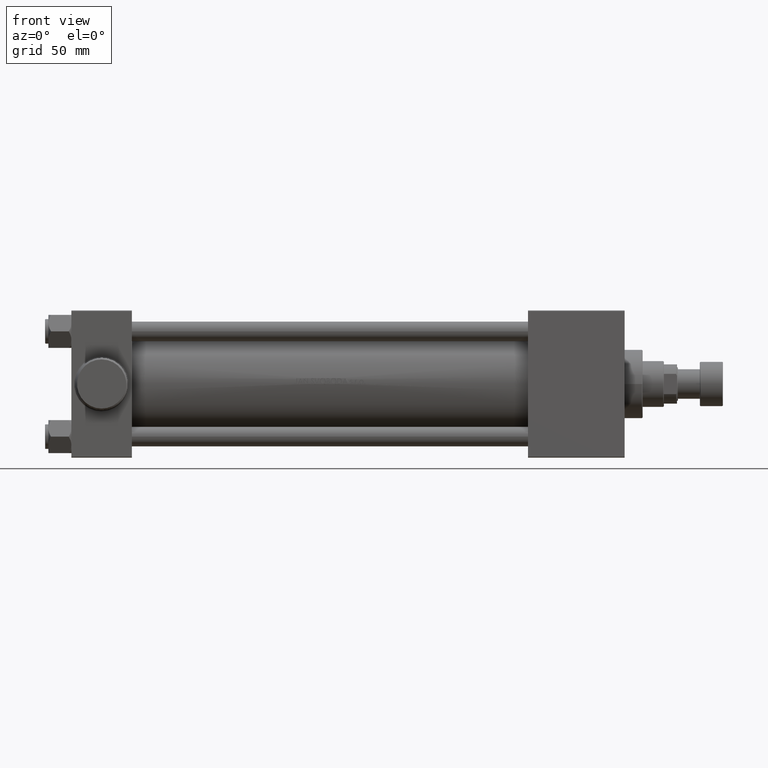
[diagram: clean part render]
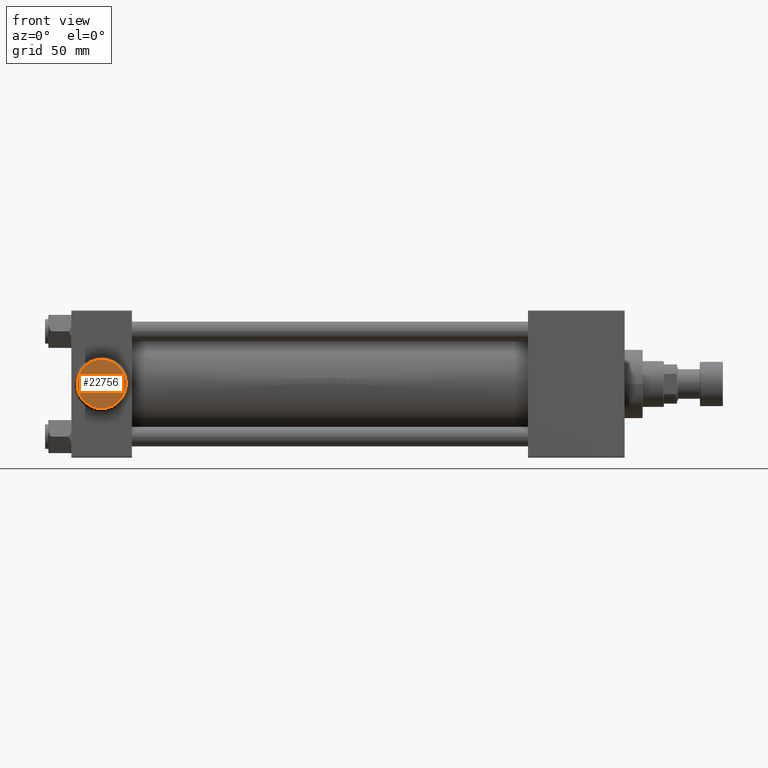
[diagram: same view with one face highlighted and labeled with its STEP entity id]
A machine part, front view. The second image highlights one B-rep face of the part: STEP entity #22756.
In plain terms, the highlighted planar face has unit normal (0, -1, -0).
Its self-contained STEP definition (entity closure, byte-faithful):
#3768 = DIRECTION ( 'NONE',  ( 0.000000000000000000, -1.000000000000000000, -8.673617379884036705E-17 ) ) ;
#6627 = CARTESIAN_POINT ( 'NONE',  ( 18.50000000000000000, -71.00000000000001421, -5.724587470723464989E-15 ) ) ;
#7091 = VERTEX_POINT ( 'NONE', #7594 ) ;
#7546 = DIRECTION ( 'NONE',  ( 0.000000000000000000, 8.673617379884036705E-17, -1.000000000000000000 ) ) ;
#7594 = CARTESIAN_POINT ( 'NONE',  ( 18.50000000000000355, -71.00000000000001421, -15.00000000000007283 ) ) ;
#9272 = CARTESIAN_POINT ( 'NONE',  ( 18.50000000000000000, -71.00000000000001421, -5.724587470723464989E-15 ) ) ;
#9370 = CARTESIAN_POINT ( 'NONE',  ( 18.50000000000000000, -71.00000000000001421, 15.00000000000006217 ) ) ;
#14629 = DIRECTION ( 'NONE',  ( 0.000000000000000000, 0.000000000000000000, -1.000000000000000000 ) ) ;
#14837 = AXIS2_PLACEMENT_3D ( 'NONE', #6627, #3768, #14629 ) ;
#15039 = VERTEX_POINT ( 'NONE', #9370 ) ;
#15406 = AXIS2_PLACEMENT_3D ( 'NONE', #9272, #20866, #31280 ) ;
#18192 = FACE_OUTER_BOUND ( 'NONE', #34379, .T. ) ;
#18397 = ORIENTED_EDGE ( 'NONE', *, *, #43880, .T. ) ;
#20866 = DIRECTION ( 'NONE',  ( 0.000000000000000000, -1.000000000000000000, -8.673617379884036705E-17 ) ) ;
#22208 = PLANE ( 'NONE',  #36595 ) ;
#22353 = ORIENTED_EDGE ( 'NONE', *, *, #36466, .T. ) ;
#22756 = ADVANCED_FACE ( 'NONE', ( #18192 ), #22208, .T. ) ;
#31280 = DIRECTION ( 'NONE',  ( 0.000000000000000000, 0.000000000000000000, -1.000000000000000000 ) ) ;
#32606 = DIRECTION ( 'NONE',  ( 0.000000000000000000, -1.000000000000000000, -8.673617379884036705E-17 ) ) ;
#32772 = CIRCLE ( 'NONE', #15406, 15.00000000000006573 ) ;
#32975 = CIRCLE ( 'NONE', #14837, 15.00000000000006573 ) ;
#34379 = EDGE_LOOP ( 'NONE', ( #18397, #22353 ) ) ;
#36466 = EDGE_CURVE ( 'NONE', #7091, #15039, #32772, .T. ) ;
#36595 = AXIS2_PLACEMENT_3D ( 'NONE', #36846, #32606, #7546 ) ;
#36846 = CARTESIAN_POINT ( 'NONE',  ( 18.50000000000000000, -71.00000000000001421, -5.724587470723464989E-15 ) ) ;
#43880 = EDGE_CURVE ( 'NONE', #15039, #7091, #32975, .T. ) ;